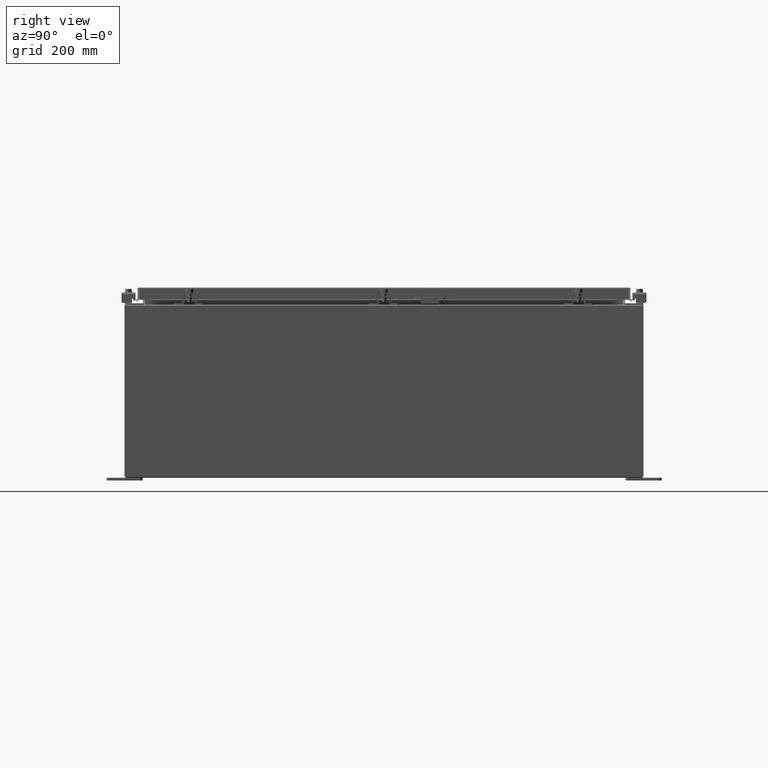
[diagram: clean part render]
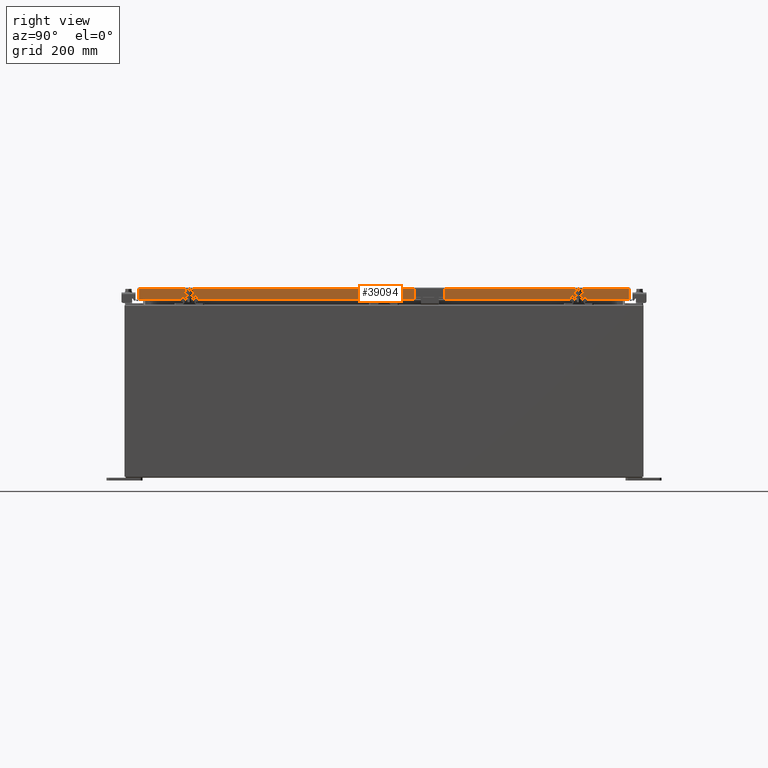
[diagram: same view with one face highlighted and labeled with its STEP entity id]
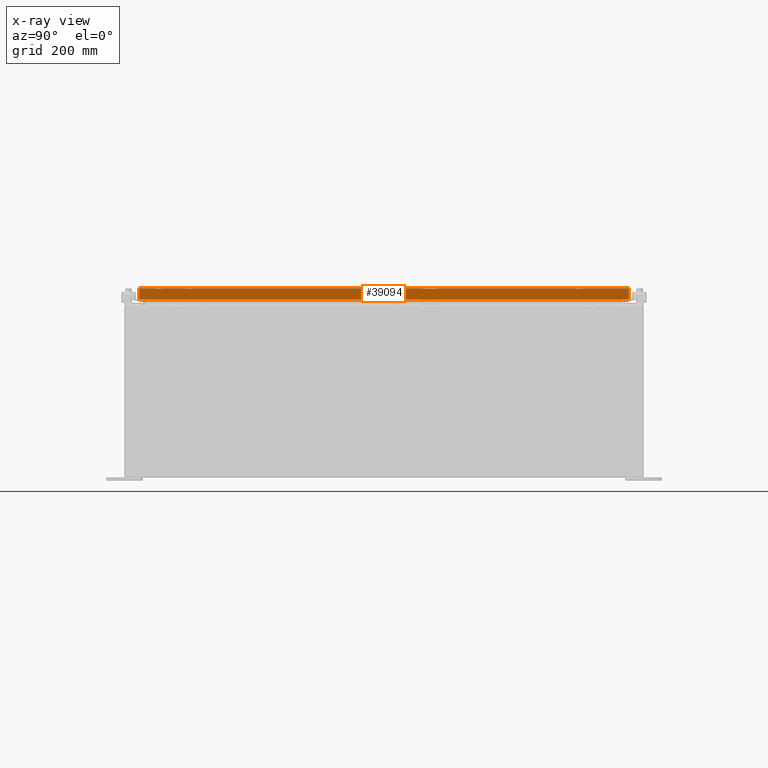
[diagram: x-ray of the same camera — body ghosted, the highlighted face saturated]
A machine part, right view. The second image highlights one B-rep face of the part: STEP entity #39094.
The next image is the same camera in x-ray: the body ghosted, the highlighted face saturated — about 0% of this face is hidden behind the body in this view.
In plain terms, the highlighted planar face has unit normal (1, 0, 0).
Its self-contained STEP definition (entity closure, byte-faithful):
#734 = DIRECTION ( 'NONE',  ( 2.818880942772360100E-015, 0.0000000000000000000, -1.000000000000000000 ) ) ;
#1073 = CARTESIAN_POINT ( 'NONE',  ( 14.07799999999998700, 16.25515786437628000, -0.8500000000000020900 ) ) ;
#2047 = VERTEX_POINT ( 'NONE', #32564 ) ;
#3168 = CARTESIAN_POINT ( 'NONE',  ( 14.07799999999999400, -17.00515786437626900, -0.08770000000000026400 ) ) ;
#3827 = FACE_OUTER_BOUND ( 'NONE', #7088, .T. ) ;
#4225 = VECTOR ( 'NONE', #15047, 39.37007874015748100 ) ;
#4468 = LINE ( 'NONE', #26885, #12389 ) ;
#4849 = CARTESIAN_POINT ( 'NONE',  ( 14.07799999999999600, -17.00515786437626500, -0.8499999999999999800 ) ) ;
#5274 = DIRECTION ( 'NONE',  ( 0.0000000000000000000, -1.000000000000000000, 0.0000000000000000000 ) ) ;
#5306 = LINE ( 'NONE', #21661, #4225 ) ;
#7088 = EDGE_LOOP ( 'NONE', ( #43246, #39149, #40743, #12494, #40652, #43636 ) ) ;
#7958 = CARTESIAN_POINT ( 'NONE',  ( 14.07799999999999600, -17.09400000000000100, -0.8499999999999999800 ) ) ;
#9521 = VERTEX_POINT ( 'NONE', #42113 ) ;
#10455 = VERTEX_POINT ( 'NONE', #25785 ) ;
#11287 = DIRECTION ( 'NONE',  ( 0.0000000000000000000, -1.000000000000000000, 0.0000000000000000000 ) ) ;
#12389 = VECTOR ( 'NONE', #43698, 39.37007874015748100 ) ;
#12494 = ORIENTED_EDGE ( 'NONE', *, *, #21080, .F. ) ;
#13508 = LINE ( 'NONE', #35520, #21392 ) ;
#14782 = DIRECTION ( 'NONE',  ( 0.0000000000000000000, -1.000000000000000000, 0.0000000000000000000 ) ) ;
#15047 = DIRECTION ( 'NONE',  ( -2.818880942772360500E-015, -6.982962677686269100E-015, 1.000000000000000000 ) ) ;
#17092 = LINE ( 'NONE', #25442, #34968 ) ;
#20970 = DIRECTION ( 'NONE',  ( 1.000000000000000000, 0.0000000000000000000, 2.818880942772360100E-015 ) ) ;
#21080 = EDGE_CURVE ( 'NONE', #10455, #42173, #38302, .T. ) ;
#21392 = VECTOR ( 'NONE', #25498, 39.37007874015748100 ) ;
#21661 = CARTESIAN_POINT ( 'NONE',  ( 14.07799999999999400, -17.00515786437626900, -0.07470000000000015500 ) ) ;
#25068 = EDGE_CURVE ( 'NONE', #2047, #33871, #17092, .T. ) ;
#25442 = CARTESIAN_POINT ( 'NONE',  ( 14.07799999999999400, 0.0000000000000000000, -0.08770000000000026400 ) ) ;
#25498 = DIRECTION ( 'NONE',  ( -2.818880942772360500E-015, -6.982962677686269100E-015, 1.000000000000000000 ) ) ;
#25785 = CARTESIAN_POINT ( 'NONE',  ( 14.07799999999999600, 17.00515786437627600, -0.8499999999999999800 ) ) ;
#26867 = EDGE_CURVE ( 'NONE', #42594, #33871, #5306, .T. ) ;
#26885 = CARTESIAN_POINT ( 'NONE',  ( 14.07799999999999600, -17.09400000000000100, -0.8499999999999999800 ) ) ;
#27595 = CARTESIAN_POINT ( 'NONE',  ( 14.07799999999999400, 0.0000000000000000000, 3.933861110876539400E-014 ) ) ;
#28232 = EDGE_CURVE ( 'NONE', #9521, #42594, #4468, .T. ) ;
#30938 = PLANE ( 'NONE',  #38752 ) ;
#32564 = CARTESIAN_POINT ( 'NONE',  ( 14.07799999999999400, 17.00515786437626900, -0.08770000000000026400 ) ) ;
#33871 = VERTEX_POINT ( 'NONE', #3168 ) ;
#34968 = VECTOR ( 'NONE', #5274, 39.37007874015748100 ) ;
#35520 = CARTESIAN_POINT ( 'NONE',  ( 14.07799999999999400, 17.00515786437627200, 1.595399228299929700E-013 ) ) ;
#37242 = VECTOR ( 'NONE', #14782, 39.37007874015748100 ) ;
#37486 = EDGE_CURVE ( 'NONE', #10455, #2047, #13508, .T. ) ;
#38302 = LINE ( 'NONE', #7958, #37242 ) ;
#38752 = AXIS2_PLACEMENT_3D ( 'NONE', #27595, #20970, #734 ) ;
#39094 = ADVANCED_FACE ( 'NONE', ( #3827 ), #30938, .T. ) ;
#39149 = ORIENTED_EDGE ( 'NONE', *, *, #28232, .F. ) ;
#39522 = CARTESIAN_POINT ( 'NONE',  ( 14.07799999999998700, 16.25515786437627600, -0.8500000000000020900 ) ) ;
#40144 = VECTOR ( 'NONE', #11287, 39.37007874015748100 ) ;
#40652 = ORIENTED_EDGE ( 'NONE', *, *, #37486, .T. ) ;
#40743 = ORIENTED_EDGE ( 'NONE', *, *, #41043, .F. ) ;
#41043 = EDGE_CURVE ( 'NONE', #42173, #9521, #41175, .T. ) ;
#41175 = LINE ( 'NONE', #1073, #40144 ) ;
#42113 = CARTESIAN_POINT ( 'NONE',  ( 14.07799999999998700, -16.25515786437626500, -0.8500000000000020900 ) ) ;
#42173 = VERTEX_POINT ( 'NONE', #39522 ) ;
#42594 = VERTEX_POINT ( 'NONE', #4849 ) ;
#43246 = ORIENTED_EDGE ( 'NONE', *, *, #26867, .F. ) ;
#43636 = ORIENTED_EDGE ( 'NONE', *, *, #25068, .T. ) ;
#43698 = DIRECTION ( 'NONE',  ( 0.0000000000000000000, -1.000000000000000000, 0.0000000000000000000 ) ) ;